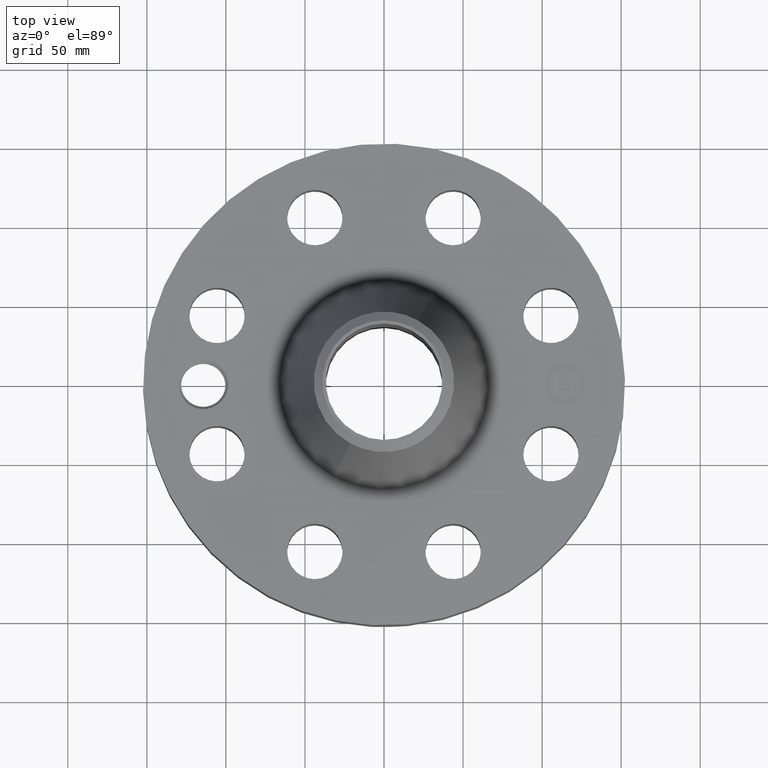
[diagram: clean part render]
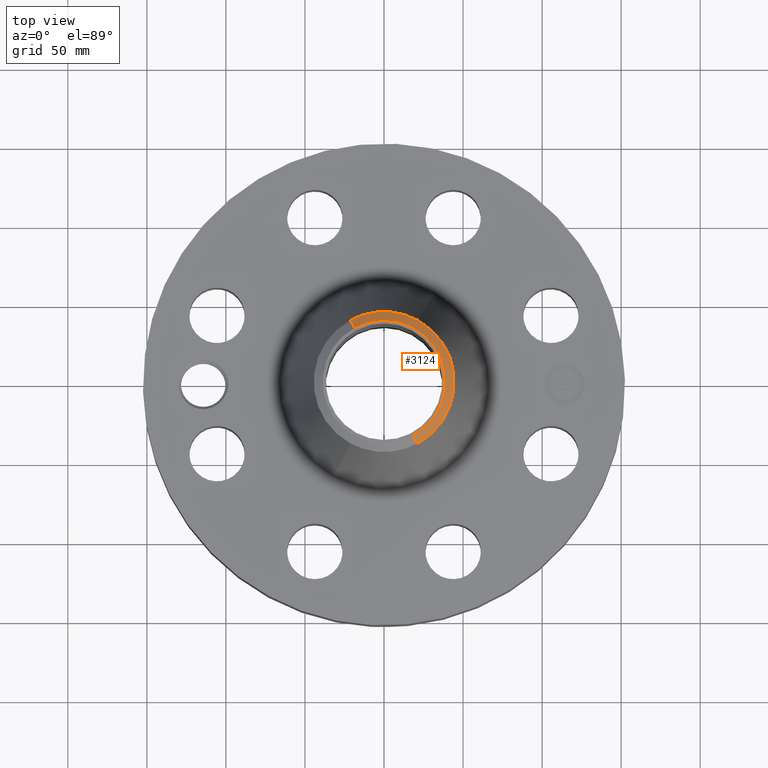
[diagram: same view with one face highlighted and labeled with its STEP entity id]
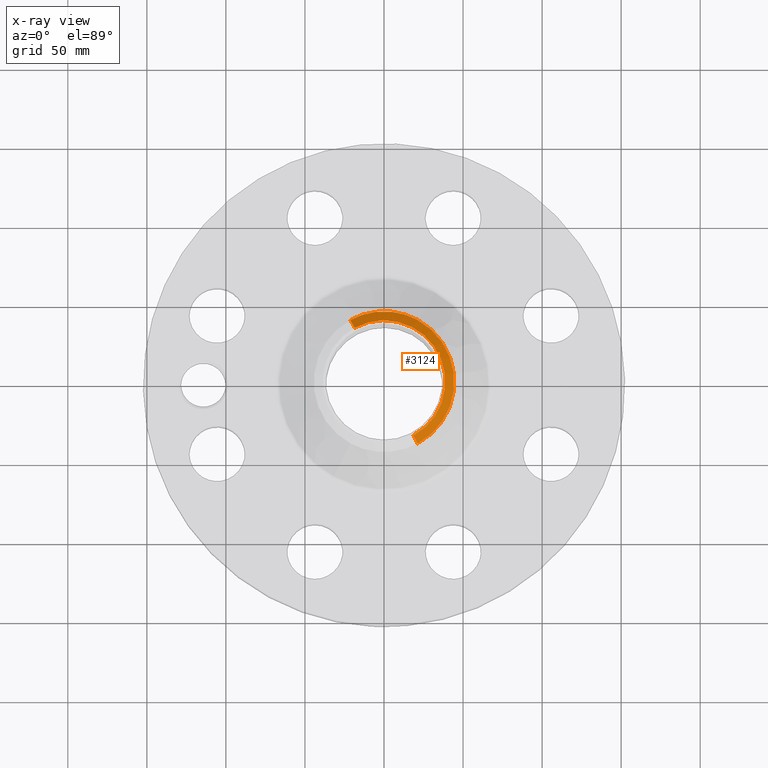
[diagram: x-ray of the same camera — body ghosted, the highlighted face saturated]
A machine part, top view. The second image highlights one B-rep face of the part: STEP entity #3124.
The next image is the same camera in x-ray: the body ghosted, the highlighted face saturated — about 0% of this face is hidden behind the body in this view.
In plain terms, the highlighted conical surface has half-angle 52.5 deg.
Its self-contained STEP definition (entity closure, byte-faithful):
#2261=AXIS2_PLACEMENT_3D('Circle Axis2P3D',#2259,#2260,$) ;
#3069=AXIS2_PLACEMENT_3D('Cone Axis2P3D',#3066,#3067,#3068) ;
#3107=AXIS2_PLACEMENT_3D('Circle Axis2P3D',#3105,#3106,$) ;
#3114=AXIS2_PLACEMENT_3D('Circle Axis2P3D',#3112,#3113,$) ;
#2259=CARTESIAN_POINT('Axis2P3D Location',(0.,0.,6.87000000003)) ;
#2263=CARTESIAN_POINT('Vertex',(0.732917073389,-1.34159570387,6.87000000003)) ;
#2265=CARTESIAN_POINT('Vertex',(-0.732917073389,1.34159570387,6.87000000003)) ;
#3066=CARTESIAN_POINT('Axis2P3D Location',(0.,0.,6.87000000003)) ;
#3071=CARTESIAN_POINT('Line Origine',(0.785955882975,-1.43868259359,6.78511067577)) ;
#3075=CARTESIAN_POINT('Vertex',(0.838994692561,-1.53576948331,6.70022135151)) ;
#3078=CARTESIAN_POINT('Line Origine',(-0.785955882975,1.43868259359,6.78511067577)) ;
#3082=CARTESIAN_POINT('Vertex',(-0.838994692561,1.53576948331,6.70022135151)) ;
#3105=CARTESIAN_POINT('Axis2P3D Location',(0.,0.,6.70022135151)) ;
#3109=CARTESIAN_POINT('Vertex',(0.838994692561,1.53576948331,6.70022135151)) ;
#3112=CARTESIAN_POINT('Axis2P3D Location',(0.,0.,6.70022135151)) ;
#2260=DIRECTION('Axis2P3D Direction',(0.,0.,-0.0393700787402)) ;
#3067=DIRECTION('Axis2P3D Direction',(-0.,-0.,-0.0393700787402)) ;
#3068=DIRECTION('Axis2P3D XDirection',(-0.0188750212049,0.0345504945626,0.)) ;
#3072=DIRECTION('Vector Direction',(0.014974561121,-0.02741075027,-0.023966985394)) ;
#3079=DIRECTION('Vector Direction',(-0.014974561121,0.02741075027,-0.023966985394)) ;
#3106=DIRECTION('Axis2P3D Direction',(0.,0.,-0.0393700787402)) ;
#3113=DIRECTION('Axis2P3D Direction',(0.,0.,-0.0393700787402)) ;
#3073=VECTOR('Line Direction',#3072,0.0393700787402) ;
#3080=VECTOR('Line Direction',#3079,0.0393700787402) ;
#3118=ORIENTED_EDGE('',*,*,#3084,.F.) ;
#3119=ORIENTED_EDGE('',*,*,#2267,.F.) ;
#3120=ORIENTED_EDGE('',*,*,#3077,.T.) ;
#3121=ORIENTED_EDGE('',*,*,#3111,.T.) ;
#3122=ORIENTED_EDGE('',*,*,#3116,.F.) ;
#3124=ADVANCED_FACE('PartBody',(#3123),#3070,.T.) ;
#2262=CIRCLE('generated circle',#2261,1.52874015749) ;
#3108=CIRCLE('generated circle',#3107,1.75000000001) ;
#3115=CIRCLE('generated circle',#3114,1.75000000001) ;
#3070=CONICAL_SURFACE('Cone',#3069,1.52874015749,0.916297857297) ;
#2267=EDGE_CURVE('',#2264,#2266,#2262,.F.) ;
#3077=EDGE_CURVE('',#2264,#3076,#3074,.T.) ;
#3084=EDGE_CURVE('',#2266,#3083,#3081,.T.) ;
#3111=EDGE_CURVE('',#3076,#3110,#3108,.F.) ;
#3116=EDGE_CURVE('',#3083,#3110,#3115,.T.) ;
#3117=EDGE_LOOP('',(#3118,#3119,#3120,#3121,#3122)) ;
#3123=FACE_OUTER_BOUND('',#3117,.T.) ;
#3074=LINE('Line',#3071,#3073) ;
#3081=LINE('Line',#3078,#3080) ;
#2264=VERTEX_POINT('',#2263) ;
#2266=VERTEX_POINT('',#2265) ;
#3076=VERTEX_POINT('',#3075) ;
#3083=VERTEX_POINT('',#3082) ;
#3110=VERTEX_POINT('',#3109) ;